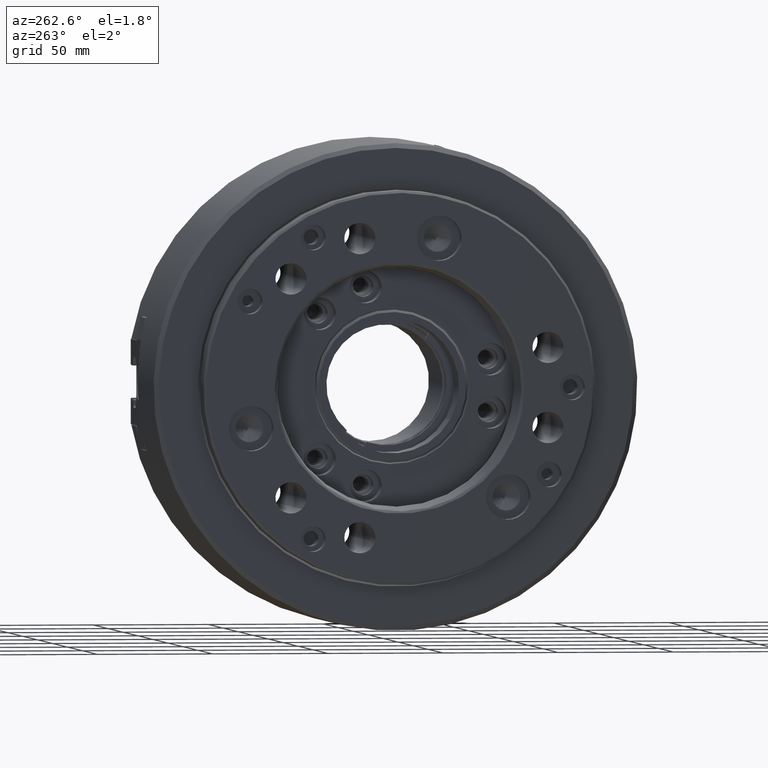
[diagram: clean part render]
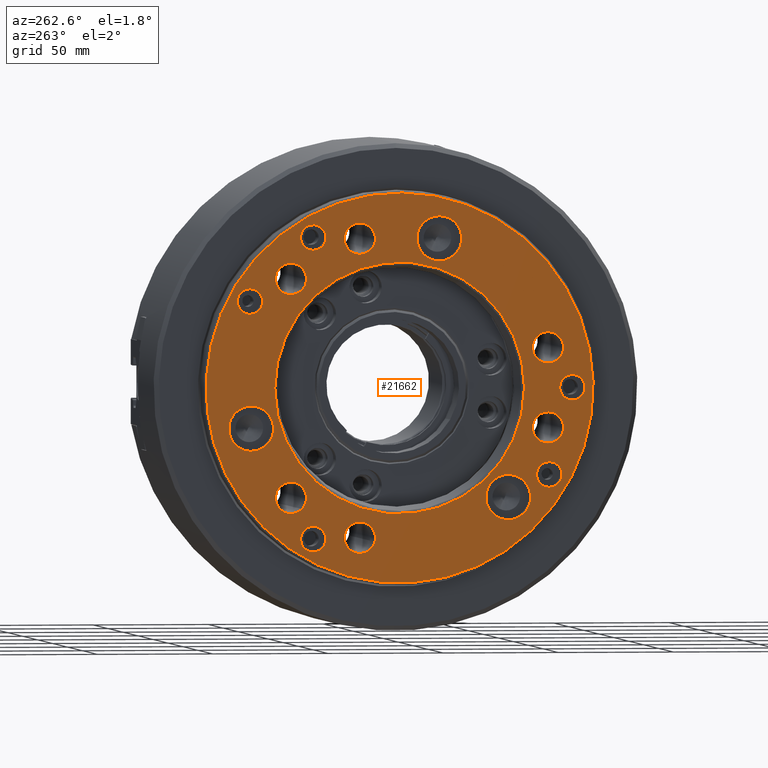
[diagram: same view with one face highlighted and labeled with its STEP entity id]
A machine part, auxiliary view. The second image highlights one B-rep face of the part: STEP entity #21662.
In plain terms, the highlighted planar face has unit normal (-1, 0, 0).
Its self-contained STEP definition (entity closure, byte-faithful):
#5469=PLANE('',#23657);
#11511=ORIENTED_EDGE('',*,*,#14668,.F.);
#11512=ORIENTED_EDGE('',*,*,#14669,.T.);
#11513=ORIENTED_EDGE('',*,*,#14670,.F.);
#11514=ORIENTED_EDGE('',*,*,#14671,.F.);
#11515=ORIENTED_EDGE('',*,*,#14672,.F.);
#11516=ORIENTED_EDGE('',*,*,#14673,.F.);
#11517=ORIENTED_EDGE('',*,*,#14674,.F.);
#11518=ORIENTED_EDGE('',*,*,#14675,.F.);
#11519=ORIENTED_EDGE('',*,*,#14676,.T.);
#11520=ORIENTED_EDGE('',*,*,#14677,.T.);
#11521=ORIENTED_EDGE('',*,*,#14678,.T.);
#11522=ORIENTED_EDGE('',*,*,#14679,.T.);
#11523=ORIENTED_EDGE('',*,*,#14680,.T.);
#11524=ORIENTED_EDGE('',*,*,#14681,.T.);
#11525=ORIENTED_EDGE('',*,*,#14682,.T.);
#11526=ORIENTED_EDGE('',*,*,#14683,.T.);
#14668=EDGE_CURVE('',#16653,#16653,#17387,.T.);
#14669=EDGE_CURVE('',#16654,#16654,#17388,.T.);
#14670=EDGE_CURVE('',#16655,#16655,#17389,.T.);
#14671=EDGE_CURVE('',#16656,#16656,#17390,.T.);
#14672=EDGE_CURVE('',#16657,#16657,#17391,.T.);
#14673=EDGE_CURVE('',#16658,#16658,#17392,.T.);
#14674=EDGE_CURVE('',#16659,#16659,#17393,.T.);
#14675=EDGE_CURVE('',#16660,#16660,#17394,.T.);
#14676=EDGE_CURVE('',#16661,#16661,#17395,.T.);
#14677=EDGE_CURVE('',#16662,#16662,#17396,.T.);
#14678=EDGE_CURVE('',#16663,#16663,#17397,.T.);
#14679=EDGE_CURVE('',#16664,#16664,#17398,.T.);
#14680=EDGE_CURVE('',#16665,#16665,#17399,.T.);
#14681=EDGE_CURVE('',#16666,#16666,#17400,.T.);
#14682=EDGE_CURVE('',#16667,#16667,#17401,.T.);
#14683=EDGE_CURVE('',#16668,#16668,#17402,.T.);
#16653=VERTEX_POINT('',#36930);
#16654=VERTEX_POINT('',#36933);
#16655=VERTEX_POINT('',#36935);
#16656=VERTEX_POINT('',#36937);
#16657=VERTEX_POINT('',#36939);
#16658=VERTEX_POINT('',#36941);
#16659=VERTEX_POINT('',#36943);
#16660=VERTEX_POINT('',#36945);
#16661=VERTEX_POINT('',#36947);
#16662=VERTEX_POINT('',#36949);
#16663=VERTEX_POINT('',#36951);
#16664=VERTEX_POINT('',#36953);
#16665=VERTEX_POINT('',#36955);
#16666=VERTEX_POINT('',#36957);
#16667=VERTEX_POINT('',#36959);
#16668=VERTEX_POINT('',#36961);
#17387=CIRCLE('',#23656,54.1885);
#17388=CIRCLE('',#23658,84.);
#17389=CIRCLE('',#23659,6.75);
#17390=CIRCLE('',#23660,6.75);
#17391=CIRCLE('',#23661,6.75);
#17392=CIRCLE('',#23662,6.75);
#17393=CIRCLE('',#23663,6.75);
#17394=CIRCLE('',#23664,6.75);
#17395=CIRCLE('',#23665,5.5);
#17396=CIRCLE('',#23666,5.5);
#17397=CIRCLE('',#23667,5.5);
#17398=CIRCLE('',#23668,5.5);
#17399=CIRCLE('',#23669,5.5);
#17400=CIRCLE('',#23670,9.73);
#17401=CIRCLE('',#23671,9.73);
#17402=CIRCLE('',#23672,9.73);
#18747=EDGE_LOOP('',(#11511));
#18748=EDGE_LOOP('',(#11512));
#18749=EDGE_LOOP('',(#11513));
#18750=EDGE_LOOP('',(#11514));
#18751=EDGE_LOOP('',(#11515));
#18752=EDGE_LOOP('',(#11516));
#18753=EDGE_LOOP('',(#11517));
#18754=EDGE_LOOP('',(#11518));
#18755=EDGE_LOOP('',(#11519));
#18756=EDGE_LOOP('',(#11520));
#18757=EDGE_LOOP('',(#11521));
#18758=EDGE_LOOP('',(#11522));
#18759=EDGE_LOOP('',(#11523));
#18760=EDGE_LOOP('',(#11524));
#18761=EDGE_LOOP('',(#11525));
#18762=EDGE_LOOP('',(#11526));
#20185=FACE_BOUND('',#18747,.T.);
#20186=FACE_BOUND('',#18748,.T.);
#20187=FACE_BOUND('',#18749,.T.);
#20188=FACE_BOUND('',#18750,.T.);
#20189=FACE_BOUND('',#18751,.T.);
#20190=FACE_BOUND('',#18752,.T.);
#20191=FACE_BOUND('',#18753,.T.);
#20192=FACE_BOUND('',#18754,.T.);
#20193=FACE_BOUND('',#18755,.T.);
#20194=FACE_BOUND('',#18756,.T.);
#20195=FACE_BOUND('',#18757,.T.);
#20196=FACE_BOUND('',#18758,.T.);
#20197=FACE_BOUND('',#18759,.T.);
#20198=FACE_BOUND('',#18760,.T.);
#20199=FACE_BOUND('',#18761,.T.);
#20200=FACE_BOUND('',#18762,.T.);
#21662=ADVANCED_FACE('',(#20185,#20186,#20187,#20188,#20189,#20190,#20191,
#20192,#20193,#20194,#20195,#20196,#20197,#20198,#20199,#20200),#5469,.T.);
#23656=AXIS2_PLACEMENT_3D('',#36929,#29689,#29690);
#23657=AXIS2_PLACEMENT_3D('',#36931,#29691,#29692);
#23658=AXIS2_PLACEMENT_3D('',#36932,#29693,#29694);
#23659=AXIS2_PLACEMENT_3D('',#36934,#29695,#29696);
#23660=AXIS2_PLACEMENT_3D('',#36936,#29697,#29698);
#23661=AXIS2_PLACEMENT_3D('',#36938,#29699,#29700);
#23662=AXIS2_PLACEMENT_3D('',#36940,#29701,#29702);
#23663=AXIS2_PLACEMENT_3D('',#36942,#29703,#29704);
#23664=AXIS2_PLACEMENT_3D('',#36944,#29705,#29706);
#23665=AXIS2_PLACEMENT_3D('',#36946,#29707,#29708);
#23666=AXIS2_PLACEMENT_3D('',#36948,#29709,#29710);
#23667=AXIS2_PLACEMENT_3D('',#36950,#29711,#29712);
#23668=AXIS2_PLACEMENT_3D('',#36952,#29713,#29714);
#23669=AXIS2_PLACEMENT_3D('',#36954,#29715,#29716);
#23670=AXIS2_PLACEMENT_3D('',#36956,#29717,#29718);
#23671=AXIS2_PLACEMENT_3D('',#36958,#29719,#29720);
#23672=AXIS2_PLACEMENT_3D('',#36960,#29721,#29722);
#29689=DIRECTION('',(-1.,0.,0.));
#29690=DIRECTION('',(0.,-0.5,0.866025403784439));
#29691=DIRECTION('',(-1.,0.,0.));
#29692=DIRECTION('',(0.,-0.5,0.866025403784439));
#29693=DIRECTION('',(-1.,0.,0.));
#29694=DIRECTION('',(0.,-0.5,0.866025403784439));
#29695=DIRECTION('',(-1.,0.,0.));
#29696=DIRECTION('',(0.,-0.5,0.866025403784439));
#29697=DIRECTION('',(-1.,0.,0.));
#29698=DIRECTION('',(0.,-0.5,0.866025403784439));
#29699=DIRECTION('',(-1.,0.,0.));
#29700=DIRECTION('',(0.,-0.5,0.866025403784439));
#29701=DIRECTION('',(-1.,0.,0.));
#29702=DIRECTION('',(0.,-0.5,0.866025403784439));
#29703=DIRECTION('',(-1.,0.,0.));
#29704=DIRECTION('',(0.,-0.5,0.866025403784439));
#29705=DIRECTION('',(-1.,0.,0.));
#29706=DIRECTION('',(0.,-0.5,0.866025403784439));
#29707=DIRECTION('',(1.,0.,0.));
#29708=DIRECTION('',(0.,-0.5,0.866025403784439));
#29709=DIRECTION('',(1.,0.,0.));
#29710=DIRECTION('',(0.,-0.5,0.866025403784439));
#29711=DIRECTION('',(1.,0.,0.));
#29712=DIRECTION('',(0.,-0.5,0.866025403784439));
#29713=DIRECTION('',(1.,0.,0.));
#29714=DIRECTION('',(0.,-0.5,0.866025403784439));
#29715=DIRECTION('',(1.,0.,0.));
#29716=DIRECTION('',(0.,-0.5,0.866025403784439));
#29717=DIRECTION('',(1.,0.,0.));
#29718=DIRECTION('',(0.,-0.5,0.866025403784439));
#29719=DIRECTION('',(1.,0.,0.));
#29720=DIRECTION('',(0.,-0.5,0.866025403784439));
#29721=DIRECTION('',(1.,0.,0.));
#29722=DIRECTION('',(0.,-0.5,0.866025403784439));
#36929=CARTESIAN_POINT('',(-104.226234567901,2.77555756156289E-14,6.93889390390723E-15));
#36930=CARTESIAN_POINT('',(-104.226234567901,-27.09425,46.9286175929731));
#36931=CARTESIAN_POINT('',(-104.226234567901,-27.09425,46.9286175929731));
#36932=CARTESIAN_POINT('',(-104.226234567901,2.77555756156289E-14,6.93889390390723E-15));
#36933=CARTESIAN_POINT('',(-104.226234567901,-42.,72.7461339178929));
#36934=CARTESIAN_POINT('',(-104.226234567901,17.2567598322105,64.4031044678236));
#36935=CARTESIAN_POINT('',(-104.226234567901,13.8817598322105,70.2487759433686));
#36936=CARTESIAN_POINT('',(-104.226234567901,47.1463446356131,47.1463446356131));
#36937=CARTESIAN_POINT('',(-104.226234567901,43.7713446356131,52.992016111158));
#36938=CARTESIAN_POINT('',(-104.226234567901,47.1463446356131,-47.146344635613));
#36939=CARTESIAN_POINT('',(-104.226234567901,43.7713446356131,-41.3006731600681));
#36940=CARTESIAN_POINT('',(-104.226234567901,17.2567598322106,-64.4031044678236));
#36941=CARTESIAN_POINT('',(-104.226234567901,13.8817598322106,-58.5574329922787));
#36942=CARTESIAN_POINT('',(-104.226234567901,-64.4031044678236,-17.2567598322107));
#36943=CARTESIAN_POINT('',(-104.226234567901,-67.7781044678236,-11.4110883566657));
#36944=CARTESIAN_POINT('',(-104.226234567901,-64.4031044678236,17.2567598322105));
#36945=CARTESIAN_POINT('',(-104.226234567901,-67.7781044678236,23.1024313077555));
#36946=CARTESIAN_POINT('',(-104.226234567901,37.5000000000001,64.9519052838329));
#36947=CARTESIAN_POINT('',(-104.226234567901,34.75,69.7150450046473));
#36948=CARTESIAN_POINT('',(-104.226234567901,-75.,1.04083408558608E-13));
#36949=CARTESIAN_POINT('',(-104.226234567901,-77.75,4.76313972081452));
#36950=CARTESIAN_POINT('',(-104.226234567901,37.5,-64.9519052838329));
#36951=CARTESIAN_POINT('',(-104.226234567901,34.75,-60.1887655630185));
#36952=CARTESIAN_POINT('',(-104.226234567901,-64.9519052838329,-37.5));
#36953=CARTESIAN_POINT('',(-104.226234567901,-67.7019052838329,-32.7368602791856));
#36954=CARTESIAN_POINT('',(-104.226234567901,64.9519052838329,37.5));
#36955=CARTESIAN_POINT('',(-104.226234567901,62.2019052838329,42.2631397208144));
#36956=CARTESIAN_POINT('',(-104.226234567901,-17.2567598322105,64.4031044678236));
#36957=CARTESIAN_POINT('',(-104.226234567901,-22.1217598322105,72.8295316466462));
#36958=CARTESIAN_POINT('',(-104.226234567901,-47.146344635613,-47.1463446356131));
#36959=CARTESIAN_POINT('',(-104.226234567901,-52.011344635613,-38.7199174567905));
#36960=CARTESIAN_POINT('',(-104.226234567901,64.4031044678237,-17.2567598322106));
#36961=CARTESIAN_POINT('',(-104.226234567901,59.5381044678237,-8.83033265338801));